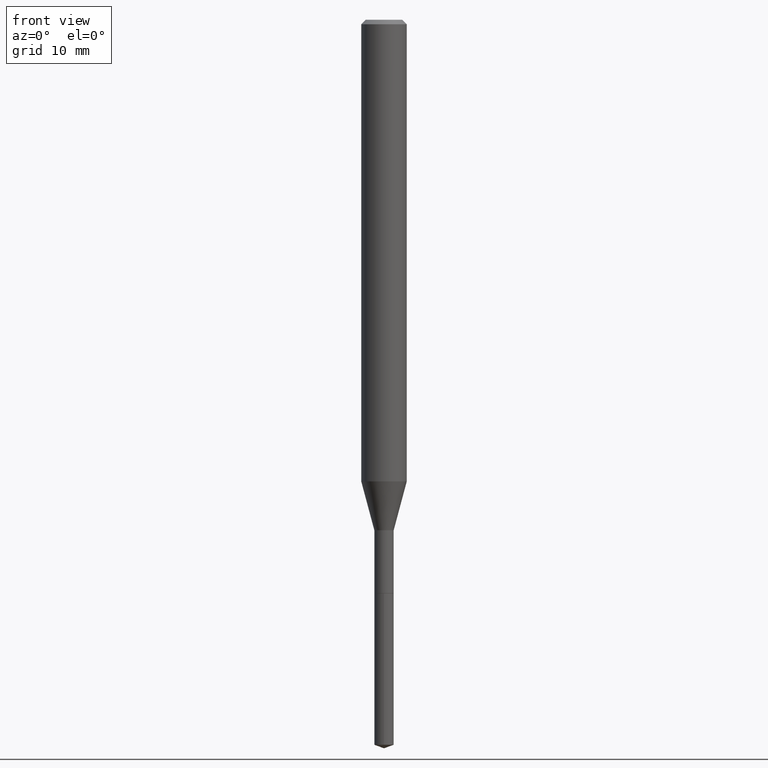
[diagram: clean part render]
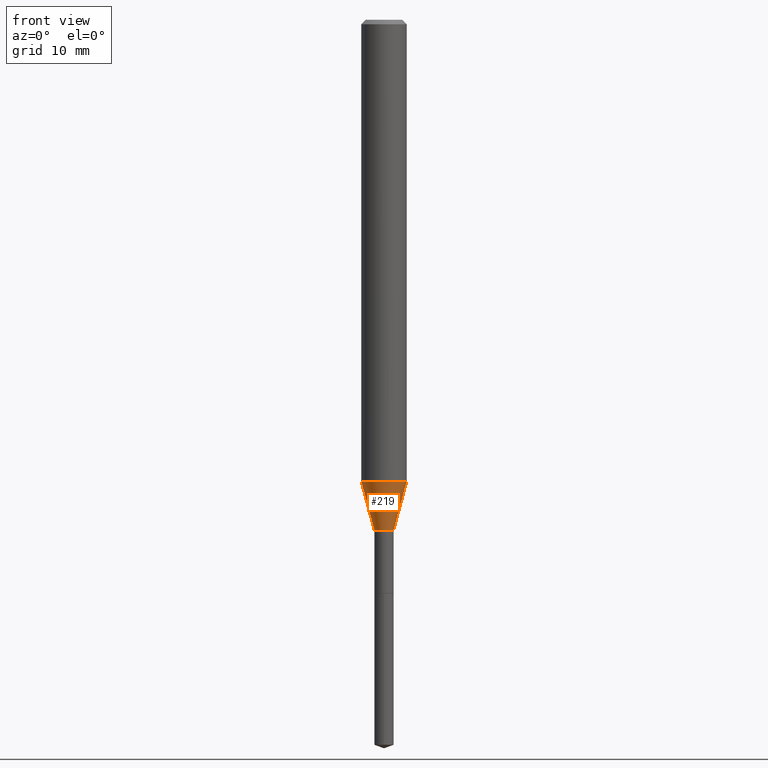
[diagram: same view with one face highlighted and labeled with its STEP entity id]
A machine part, front view. The second image highlights one B-rep face of the part: STEP entity #219.
In plain terms, the highlighted conical surface has half-angle 15 deg.
Its self-contained STEP definition (entity closure, byte-faithful):
#2 = DIRECTION ( 'NONE',  ( 1.000000000000000000, -6.982962677686269077E-15, 0.000000000000000000 ) ) ;
#21 = VERTEX_POINT ( 'NONE', #375 ) ;
#49 = EDGE_CURVE ( 'NONE', #107, #176, #412, .T. ) ;
#69 = DIRECTION ( 'NONE',  ( 0.2588190451025211836, 1.565188264969622559E-15, 0.9659258262890679791 ) ) ;
#86 = FACE_OUTER_BOUND ( 'NONE', #442, .T. ) ;
#95 = VERTEX_POINT ( 'NONE', #424 ) ;
#102 = EDGE_CURVE ( 'NONE', #95, #107, #160, .T. ) ;
#103 = ORIENTED_EDGE ( 'NONE', *, *, #49, .T. ) ;
#107 = VERTEX_POINT ( 'NONE', #387 ) ;
#123 = CARTESIAN_POINT ( 'NONE',  ( 4.317719724200476827E-29, -6.164559451861457160E-15, -1.765599999999999836 ) ) ;
#128 = CARTESIAN_POINT ( 'NONE',  ( 4.317719724200476827E-29, -6.164559451861457160E-15, -1.765599999999999836 ) ) ;
#130 = CARTESIAN_POINT ( 'NONE',  ( 3.904284117565225006E-29, -5.574282977375527399E-15, -1.596538098417129126 ) ) ;
#135 = CARTESIAN_POINT ( 'NONE',  ( -0.03344999999999997281, -5.926882906749703792E-15, -1.765599999999999836 ) ) ;
#140 = LINE ( 'NONE', #135, #454 ) ;
#152 = AXIS2_PLACEMENT_3D ( 'NONE', #128, #238, #386 ) ;
#160 = CIRCLE ( 'NONE', #152, 0.03344999999999997281 ) ;
#169 = DIRECTION ( 'NONE',  ( -2.445468806185136597E-29, 3.491481338843145583E-15, 1.000000000000000000 ) ) ;
#176 = VERTEX_POINT ( 'NONE', #352 ) ;
#202 = AXIS2_PLACEMENT_3D ( 'NONE', #123, #429, #207 ) ;
#207 = DIRECTION ( 'NONE',  ( 1.000000000000000000, -6.982962677686255667E-15, 0.000000000000000000 ) ) ;
#219 = ADVANCED_FACE ( 'NONE', ( #86 ), #358, .T. ) ;
#220 = DIRECTION ( 'NONE',  ( -0.2588190451025211836, 5.211531920934547886E-15, 0.9659258262890679791 ) ) ;
#238 = DIRECTION ( 'NONE',  ( -2.445468806185136597E-29, 3.491481338843145583E-15, 1.000000000000000000 ) ) ;
#252 = EDGE_CURVE ( 'NONE', #21, #176, #456, .T. ) ;
#268 = AXIS2_PLACEMENT_3D ( 'NONE', #130, #169, #2 ) ;
#287 = ORIENTED_EDGE ( 'NONE', *, *, #252, .F. ) ;
#292 = ORIENTED_EDGE ( 'NONE', *, *, #102, .T. ) ;
#308 = EDGE_CURVE ( 'NONE', #95, #21, #140, .T. ) ;
#310 = CARTESIAN_POINT ( 'NONE',  ( 0.03344999999999997281, -6.398139553430062226E-15, -1.765599999999999836 ) ) ;
#336 = VECTOR ( 'NONE', #69, 39.37007874015748854 ) ;
#352 = CARTESIAN_POINT ( 'NONE',  ( 0.07875000000000019484, -6.124191288243322322E-15, -1.596538098417129126 ) ) ;
#358 = CONICAL_SURFACE ( 'NONE', #202, 0.03344999999999997281, 0.2617993877991499074 ) ;
#371 = ORIENTED_EDGE ( 'NONE', *, *, #308, .F. ) ;
#375 = CARTESIAN_POINT ( 'NONE',  ( -0.07875000000000019484, -5.014730572964447019E-15, -1.596538098417129126 ) ) ;
#386 = DIRECTION ( 'NONE',  ( 1.000000000000000000, -6.982962677686255667E-15, 0.000000000000000000 ) ) ;
#387 = CARTESIAN_POINT ( 'NONE',  ( 0.03344999999999997281, -6.398139553430062226E-15, -1.765599999999999836 ) ) ;
#412 = LINE ( 'NONE', #310, #336 ) ;
#424 = CARTESIAN_POINT ( 'NONE',  ( -0.03344999999999997281, -6.307803520817490859E-15, -1.765599999999999836 ) ) ;
#429 = DIRECTION ( 'NONE',  ( -2.445468806185136597E-29, 3.491481338843145583E-15, 1.000000000000000000 ) ) ;
#442 = EDGE_LOOP ( 'NONE', ( #371, #292, #103, #287 ) ) ;
#454 = VECTOR ( 'NONE', #220, 39.37007874015748854 ) ;
#456 = CIRCLE ( 'NONE', #268, 0.07875000000000019484 ) ;